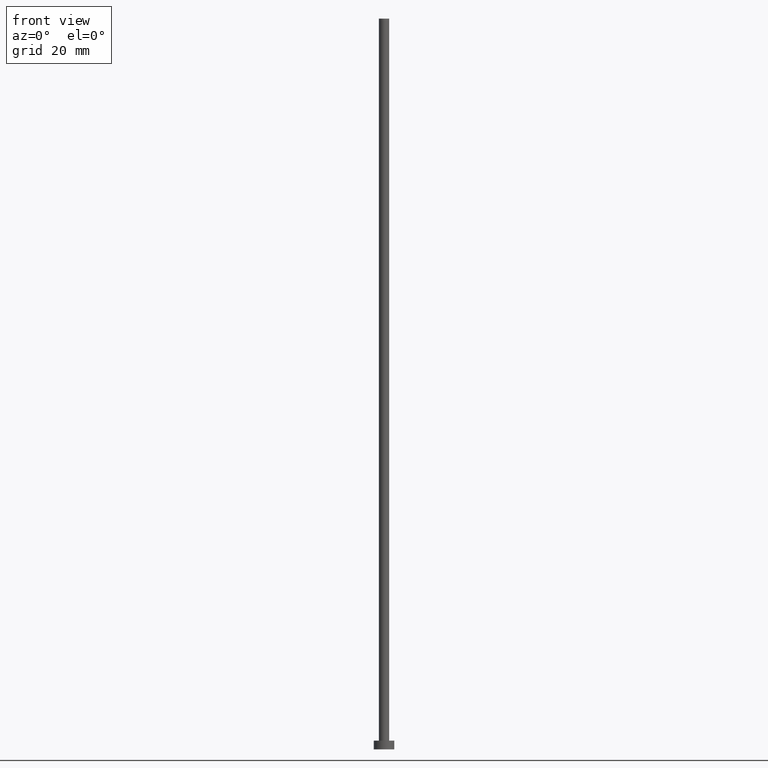
[diagram: clean part render]
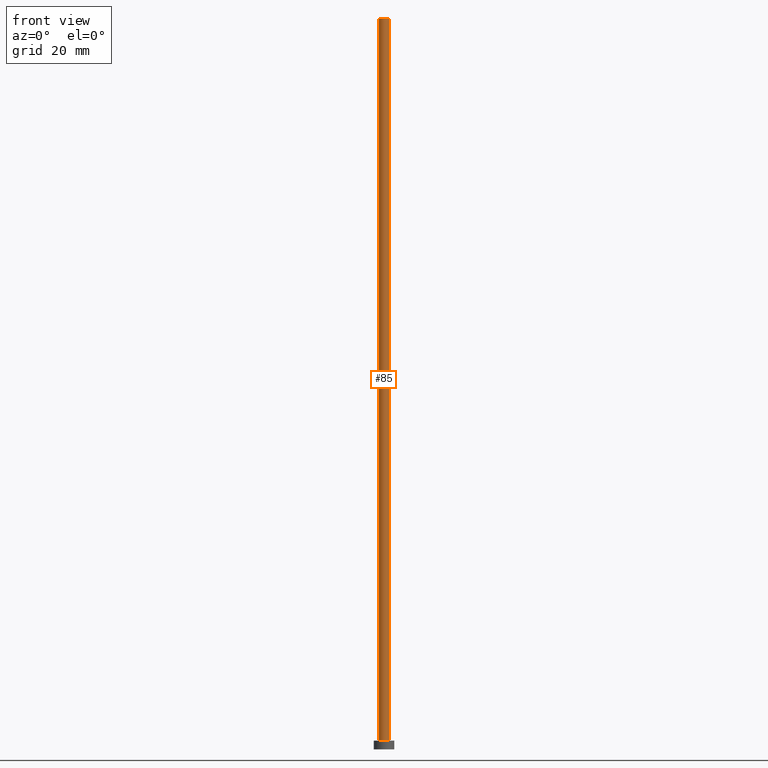
[diagram: same view with one face highlighted and labeled with its STEP entity id]
A machine part, front view. The second image highlights one B-rep face of the part: STEP entity #85.
In plain terms, the highlighted cylindrical surface (edge-blend (fillet) strip) has radius 1.75 mm, axis along (-0, -0, -1).
Its self-contained STEP definition (entity closure, byte-faithful):
#3 = CARTESIAN_POINT ( 'NONE',  ( 1.750000000000000000, 2.143131898507868297E-16, 250.0000000000000000 ) ) ;
#5 = FACE_OUTER_BOUND ( 'NONE', #206, .T. ) ;
#9 = CARTESIAN_POINT ( 'NONE',  ( -1.750000000000000000, 0.000000000000000000, 250.0000000000000000 ) ) ;
#20 = CARTESIAN_POINT ( 'NONE',  ( -1.750000000000000000, 0.000000000000000000, 3.000000000000000000 ) ) ;
#32 = AXIS2_PLACEMENT_3D ( 'NONE', #241, #58, #131 ) ;
#40 = CARTESIAN_POINT ( 'NONE',  ( -1.750000000000000000, 0.000000000000000000, 250.0000000000000000 ) ) ;
#51 = CIRCLE ( 'NONE', #57, 1.750000000000000000 ) ;
#56 = DIRECTION ( 'NONE',  ( -0.000000000000000000, -0.000000000000000000, -1.000000000000000000 ) ) ;
#57 = AXIS2_PLACEMENT_3D ( 'NONE', #118, #171, #234 ) ;
#58 = DIRECTION ( 'NONE',  ( -0.000000000000000000, -0.000000000000000000, -1.000000000000000000 ) ) ;
#68 = EDGE_CURVE ( 'NONE', #71, #185, #180, .T. ) ;
#71 = VERTEX_POINT ( 'NONE', #130 ) ;
#76 = VERTEX_POINT ( 'NONE', #40 ) ;
#81 = ORIENTED_EDGE ( 'NONE', *, *, #93, .T. ) ;
#85 = ADVANCED_FACE ( 'NONE', ( #5 ), #157, .T. ) ;
#90 = CARTESIAN_POINT ( 'NONE',  ( 1.750000000000000000, 2.143131898507868297E-16, 3.000000000000000000 ) ) ;
#93 = EDGE_CURVE ( 'NONE', #163, #185, #196, .T. ) ;
#94 = CARTESIAN_POINT ( 'NONE',  ( 0.000000000000000000, 0.000000000000000000, 3.000000000000000000 ) ) ;
#111 = EDGE_CURVE ( 'NONE', #76, #71, #51, .T. ) ;
#118 = CARTESIAN_POINT ( 'NONE',  ( 0.000000000000000000, 0.000000000000000000, 250.0000000000000000 ) ) ;
#125 = ORIENTED_EDGE ( 'NONE', *, *, #193, .T. ) ;
#130 = CARTESIAN_POINT ( 'NONE',  ( 1.750000000000000000, 2.143131898507868297E-16, 250.0000000000000000 ) ) ;
#131 = DIRECTION ( 'NONE',  ( -1.000000000000000000, 0.000000000000000000, 0.000000000000000000 ) ) ;
#133 = ORIENTED_EDGE ( 'NONE', *, *, #68, .F. ) ;
#150 = ORIENTED_EDGE ( 'NONE', *, *, #111, .F. ) ;
#157 = CYLINDRICAL_SURFACE ( 'NONE', #32, 1.750000000000000000 ) ;
#163 = VERTEX_POINT ( 'NONE', #20 ) ;
#168 = VECTOR ( 'NONE', #56, 1000.000000000000000 ) ;
#171 = DIRECTION ( 'NONE',  ( 0.000000000000000000, 0.000000000000000000, 1.000000000000000000 ) ) ;
#180 = LINE ( 'NONE', #3, #168 ) ;
#183 = DIRECTION ( 'NONE',  ( 0.000000000000000000, 0.000000000000000000, 1.000000000000000000 ) ) ;
#185 = VERTEX_POINT ( 'NONE', #90 ) ;
#186 = VECTOR ( 'NONE', #245, 1000.000000000000000 ) ;
#187 = LINE ( 'NONE', #9, #186 ) ;
#193 = EDGE_CURVE ( 'NONE', #76, #163, #187, .T. ) ;
#196 = CIRCLE ( 'NONE', #207, 1.750000000000000000 ) ;
#206 = EDGE_LOOP ( 'NONE', ( #133, #150, #125, #81 ) ) ;
#207 = AXIS2_PLACEMENT_3D ( 'NONE', #94, #183, #216 ) ;
#216 = DIRECTION ( 'NONE',  ( 1.000000000000000000, 0.000000000000000000, 0.000000000000000000 ) ) ;
#234 = DIRECTION ( 'NONE',  ( 1.000000000000000000, 0.000000000000000000, 0.000000000000000000 ) ) ;
#241 = CARTESIAN_POINT ( 'NONE',  ( 0.000000000000000000, 0.000000000000000000, 250.0000000000000000 ) ) ;
#245 = DIRECTION ( 'NONE',  ( -0.000000000000000000, -0.000000000000000000, -1.000000000000000000 ) ) ;